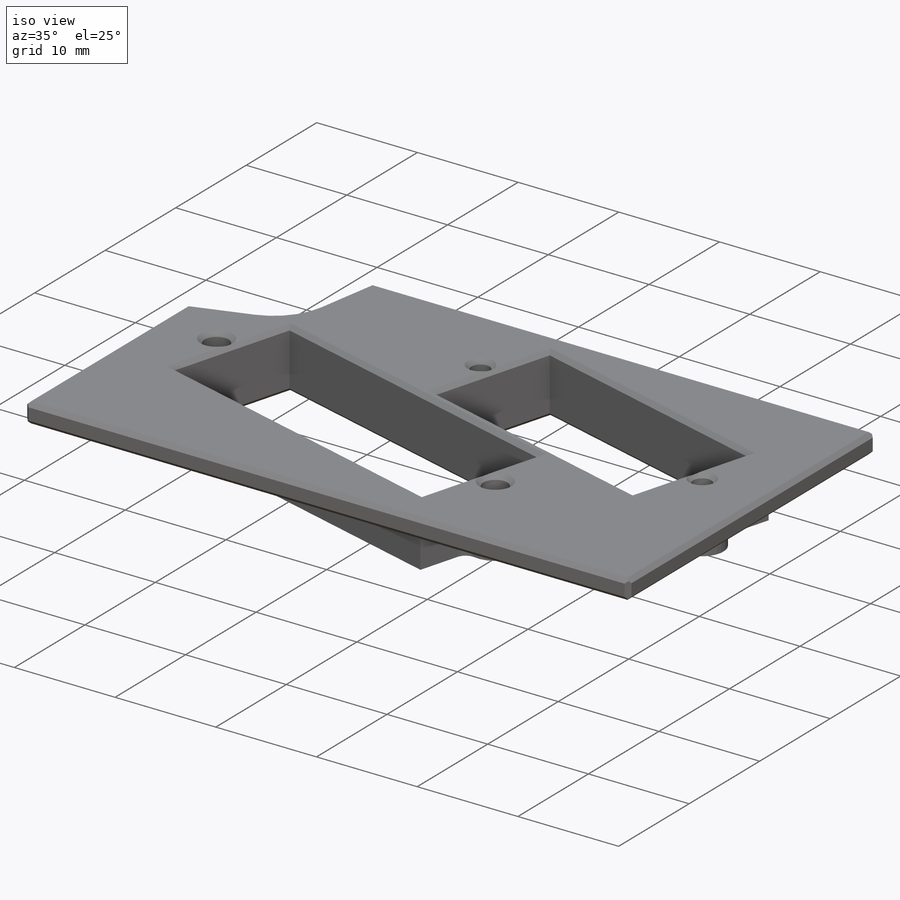
[diagram: iso view]
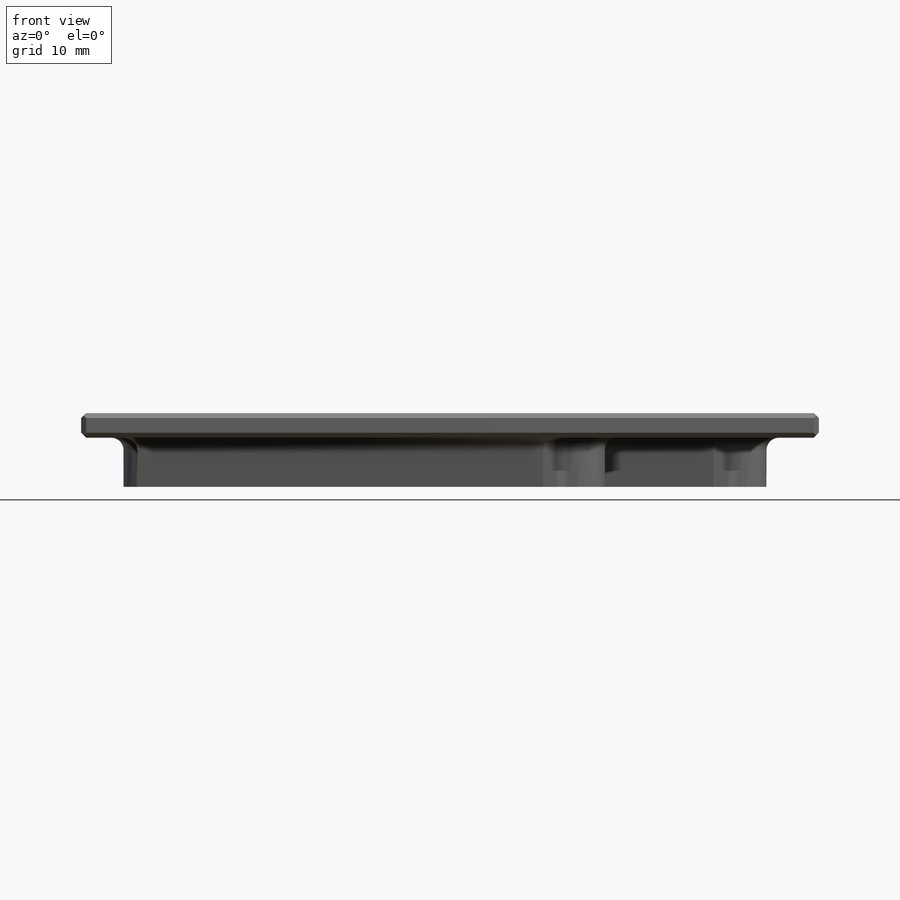
[diagram: front view]
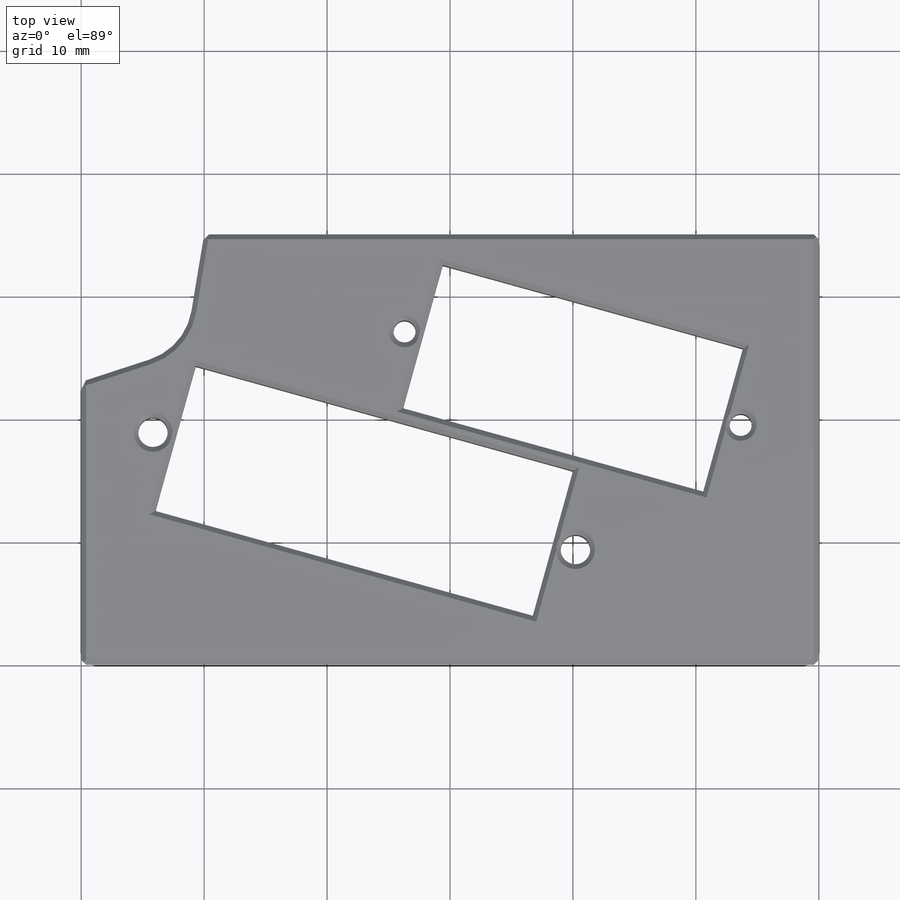
[diagram: top view]
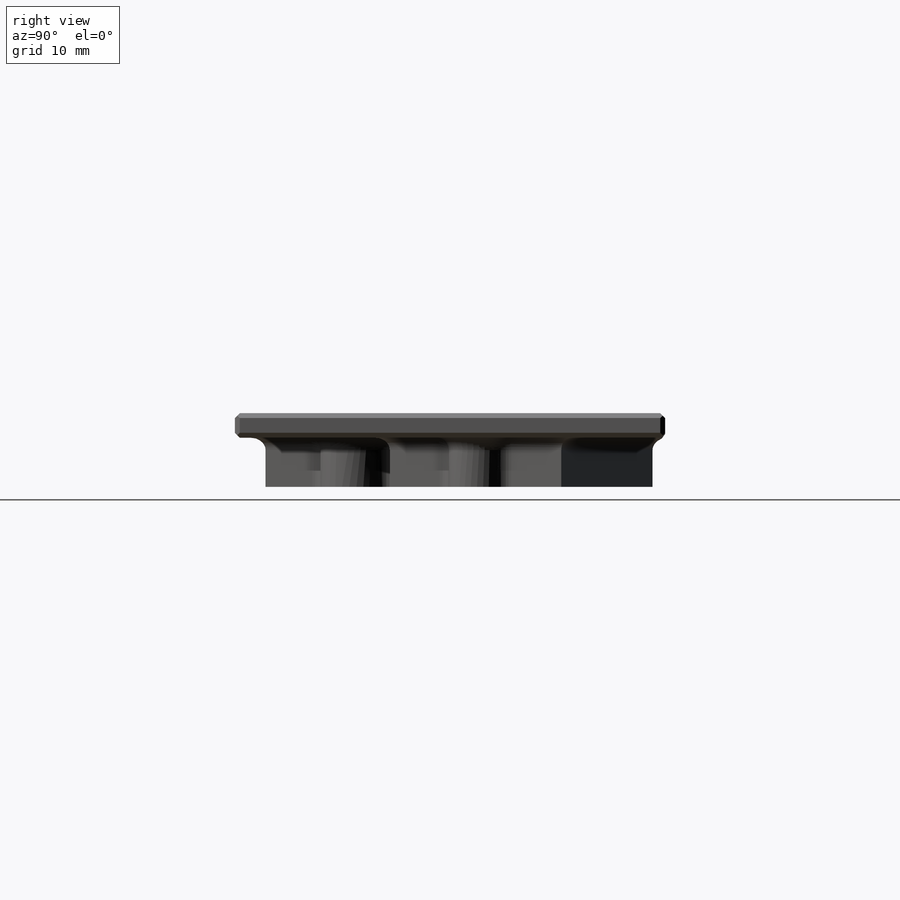
[diagram: right view]
SOLIDWORKS PART (.sldprt)
format: sldprt  version: not decoded by parser v0  size: 1,294,336 bytes
history: native  units: mm
features: sketch x6, extrude x4, chamfer x4, fillet x3, cut_extrude x2, material x1 (+12 scaffold rows collapsed)
feature tree (32):
  scaffold x12  (default folders/planes/origin — collapsed)
  material  "Material <not specified>"
  sketch  "Sketch1"  dims[c1.D1=~50.787094mm c1.D2=~102.315604mm c2.D1=35.0mm c2.D2=60.0mm c2.D3=47.0mm c2.D4=7.0mm c2.D5=28.0mm c2.D6=6.0mm c2.D7=12.0mm c2.D8=19.0mm c2.D9=1.5mm c2.D10=2.5mm]
  extrude  "Boss-Extrude1"  Depth=2mm
  extrude  "Rudder Servo Axis"  [1 undecoded]
  sketch  "Sketch2"  dims[c1.D1=1.8mm c1.D2=2.4mm c2.D1=11.684mm c2.D3=~21.654323mm c2.D4=~10.958499mm c3.D3=~31.408277mm c3.D4=~15.018018mm c4.D3=~26.477422mm c4.D4=~13.558005mm c5.D3=0.2mm c5.D4=0.2mm c5.D5=1.0mm c5.D6=1.0mm c5.D7=11.684mm c6.D7=~112.189701deg c7.D7=0.8mm c7.D8=0.8mm c7.D9=0.2mm c7.D10=0.2mm]
  cut_extrude  "Cut-Extrude1"  [1 undecoded]
  sketch  "Sketch3"  dims[D1=1.2mm D2=1.2mm]
  extrude  "Boss-Extrude2"  Depth=4mm
  sketch  "Sketch4"  dims[c1.D5=~1.320969mm c1.D1=1.2mm c1.D2=1.2mm c1.D3=1.2mm c1.D4=1.2mm c2.D1=1.2mm c2.D2=1.2mm]
  extrude  "Boss-Extrude3"  [1 undecoded]
  sketch  "Sketch5"  dims[D1=10.0mm D2=12.0mm D3=~8.474132mm]
  cut_extrude  "Cut-Extrude2"  [1 undecoded]
  fillet  "Fillet4"  Radius=5mm
  sketch  "Sketch6"  dims[c1.D1=5.0mm c2.D1=1.2mm]
  chamfer  "Chamfer3"  Distance=0.4mm Angle=45deg
  fillet  "Fillet2"  Radius=1mm
  fillet  "Fillet3"  Radius=1mm
  chamfer  "Chamfer4"  Distance=0.4mm Angle=45deg
  chamfer  "Chamfer5"  Distance=0.4mm Angle=45deg
  chamfer  "Chamfer6"  Distance=0.4mm Angle=45deg
decode coverage: 15 of 19 modeling features carry decoded parameters
note: ~ marks probable driven/reference dimensions
note: 4 parameter values undecoded
summary: no parameter record found for 4 features
note: suppression state not decoded; provenance and decode notes live in map.json
